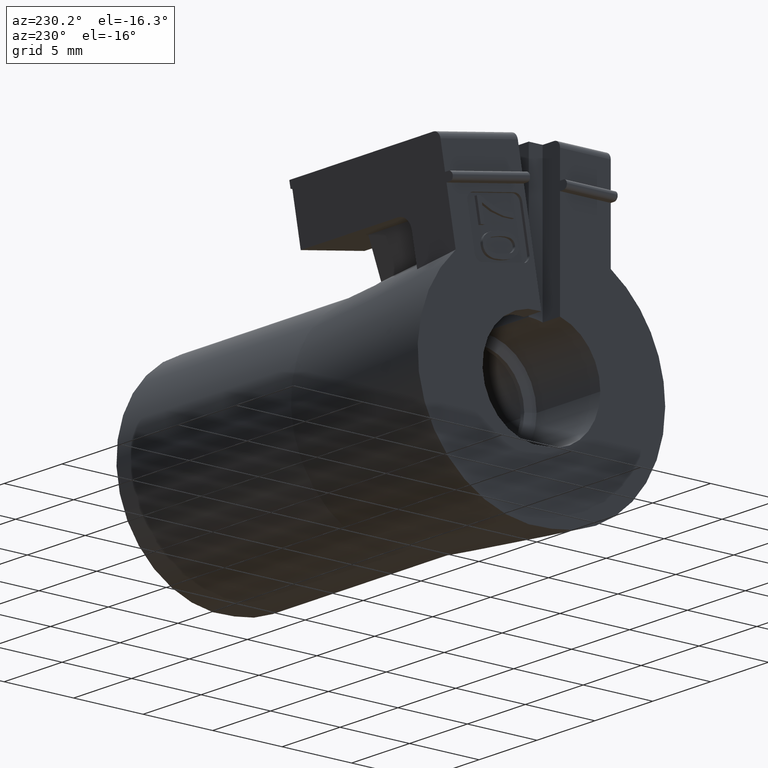
[diagram: clean part render]
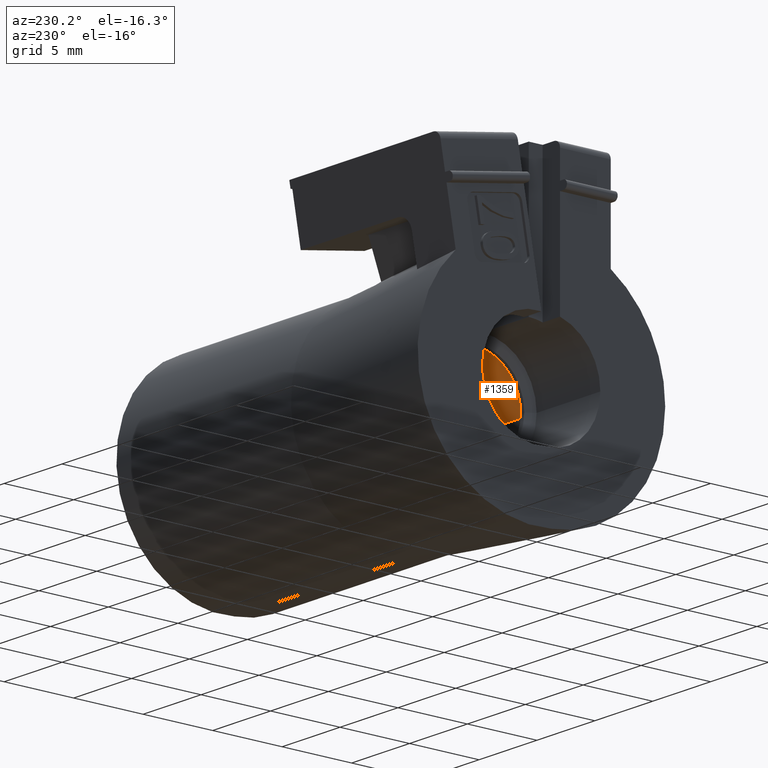
[diagram: same view with one face highlighted and labeled with its STEP entity id]
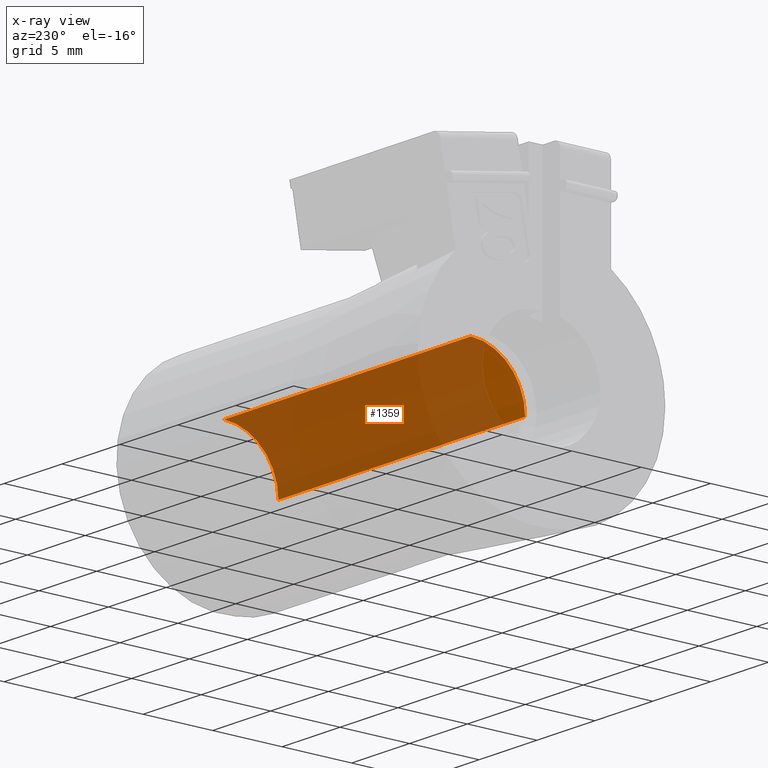
[diagram: x-ray of the same camera — body ghosted, the highlighted face saturated]
A machine part, auxiliary view. The second image highlights one B-rep face of the part: STEP entity #1359.
The next image is the same camera in x-ray: the body ghosted, the highlighted face saturated — about 92% of this face is hidden behind the body in this view.
In plain terms, the highlighted cylindrical surface (partial cylindrical patch) has radius 3.9 mm, axis along (-1, 0, 0).
Its self-contained STEP definition (entity closure, byte-faithful):
#11 = DIRECTION ( 'NONE',  ( -2.446404902018573946E-15, -1.000000000000000000, 8.881784197001252323E-16 ) ) ;
#92 = VERTEX_POINT ( 'NONE', #1060 ) ;
#402 = ORIENTED_EDGE ( 'NONE', *, *, #590, .F. ) ;
#413 = CIRCLE ( 'NONE', #3113, 0.1535433070866141780 ) ;
#458 = VERTEX_POINT ( 'NONE', #1533 ) ;
#590 = EDGE_CURVE ( 'NONE', #1881, #458, #413, .T. ) ;
#591 = EDGE_CURVE ( 'NONE', #92, #1194, #2711, .T. ) ;
#595 = VECTOR ( 'NONE', #2662, 39.37007874015748143 ) ;
#884 = ORIENTED_EDGE ( 'NONE', *, *, #591, .F. ) ;
#1060 = CARTESIAN_POINT ( 'NONE',  ( 1.062992125984248748, -0.1535433070866168426, 0.0000000000000000000 ) ) ;
#1087 = CARTESIAN_POINT ( 'NONE',  ( 0.2242681165950278777, -5.625271288481141965E-16, 0.0000000000000000000 ) ) ;
#1194 = VERTEX_POINT ( 'NONE', #2071 ) ;
#1311 = DIRECTION ( 'NONE',  ( -1.000000000000000000, 2.508281999999999843E-15, 0.0000000000000000000 ) ) ;
#1344 = LINE ( 'NONE', #3522, #595 ) ;
#1347 = FACE_OUTER_BOUND ( 'NONE', #2930, .T. ) ;
#1359 = ADVANCED_FACE ( 'NONE', ( #1347 ), #3020, .F. ) ;
#1533 = CARTESIAN_POINT ( 'NONE',  ( 0.2242681165950274613, -0.1535433070866147331, 0.0000000000000000000 ) ) ;
#1631 = ORIENTED_EDGE ( 'NONE', *, *, #3138, .T. ) ;
#1806 = CARTESIAN_POINT ( 'NONE',  ( 1.062992125984248748, -0.1535433070866168426, 0.0000000000000000000 ) ) ;
#1841 = CARTESIAN_POINT ( 'NONE',  ( 0.2242681165997641168, -1.956144679843032029E-16, 0.1535433070849563375 ) ) ;
#1881 = VERTEX_POINT ( 'NONE', #1841 ) ;
#1895 = DIRECTION ( 'NONE',  ( -1.000000000000000000, 2.508281999999999843E-15, 0.0000000000000000000 ) ) ;
#1903 = EDGE_CURVE ( 'NONE', #1881, #1194, #1344, .T. ) ;
#2007 = DIRECTION ( 'NONE',  ( 1.000000000000000000, -2.508281999999999843E-15, -0.0000000000000000000 ) ) ;
#2071 = CARTESIAN_POINT ( 'NONE',  ( 1.062992125984249192, 8.912015748031435793E-18, 0.1535433070866141780 ) ) ;
#2196 = CARTESIAN_POINT ( 'NONE',  ( 1.062992125984249192, -2.666283464566929342E-15, 0.0000000000000000000 ) ) ;
#2322 = LINE ( 'NONE', #1806, #3512 ) ;
#2429 = AXIS2_PLACEMENT_3D ( 'NONE', #2196, #1895, #2986 ) ;
#2435 = CARTESIAN_POINT ( 'NONE',  ( 1.062992125984249192, -2.666283464566929342E-15, 0.0000000000000000000 ) ) ;
#2548 = DIRECTION ( 'NONE',  ( -1.000000000000000000, 2.508281999999999843E-15, 0.0000000000000000000 ) ) ;
#2662 = DIRECTION ( 'NONE',  ( 1.000000000000000000, 0.0000000000000000000, 0.0000000000000000000 ) ) ;
#2711 = CIRCLE ( 'NONE', #2429, 0.1535433070866141780 ) ;
#2868 = ORIENTED_EDGE ( 'NONE', *, *, #1903, .T. ) ;
#2930 = EDGE_LOOP ( 'NONE', ( #884, #1631, #402, #2868 ) ) ;
#2986 = DIRECTION ( 'NONE',  ( -2.668805347656626481E-15, -1.000000000000000000, 0.0000000000000000000 ) ) ;
#3020 = CYLINDRICAL_SURFACE ( 'NONE', #3290, 0.1535433070866141780 ) ;
#3113 = AXIS2_PLACEMENT_3D ( 'NONE', #1087, #2007, #11 ) ;
#3138 = EDGE_CURVE ( 'NONE', #92, #458, #2322, .T. ) ;
#3290 = AXIS2_PLACEMENT_3D ( 'NONE', #2435, #1311, #3507 ) ;
#3507 = DIRECTION ( 'NONE',  ( -2.668805347656626481E-15, -1.000000000000000000, 0.0000000000000000000 ) ) ;
#3512 = VECTOR ( 'NONE', #2548, 39.37007874015748143 ) ;
#3522 = CARTESIAN_POINT ( 'NONE',  ( -0.01574803149606559399, 8.912015748031495882E-18, 0.1535433070866142058 ) ) ;